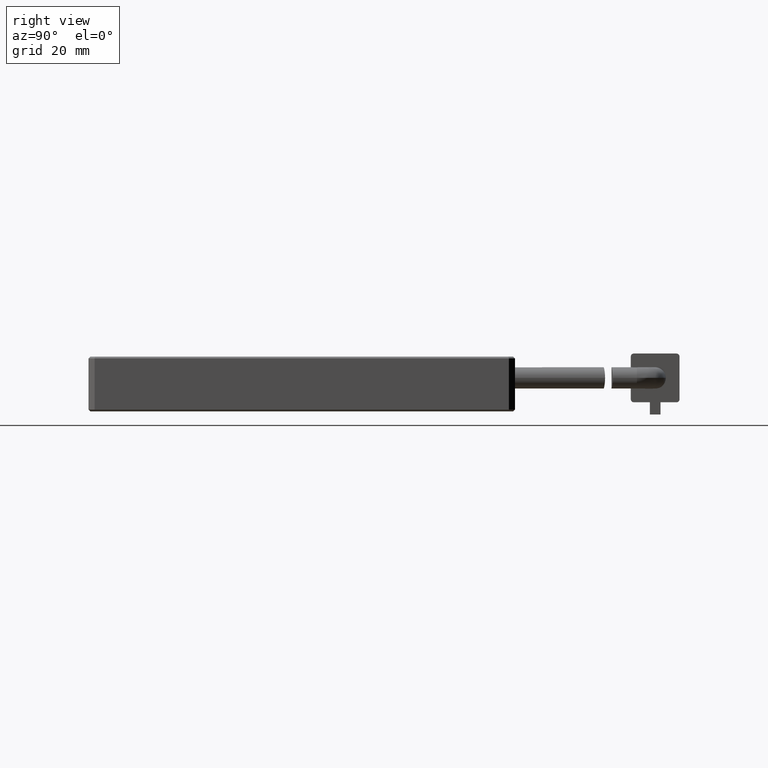
[diagram: clean part render]
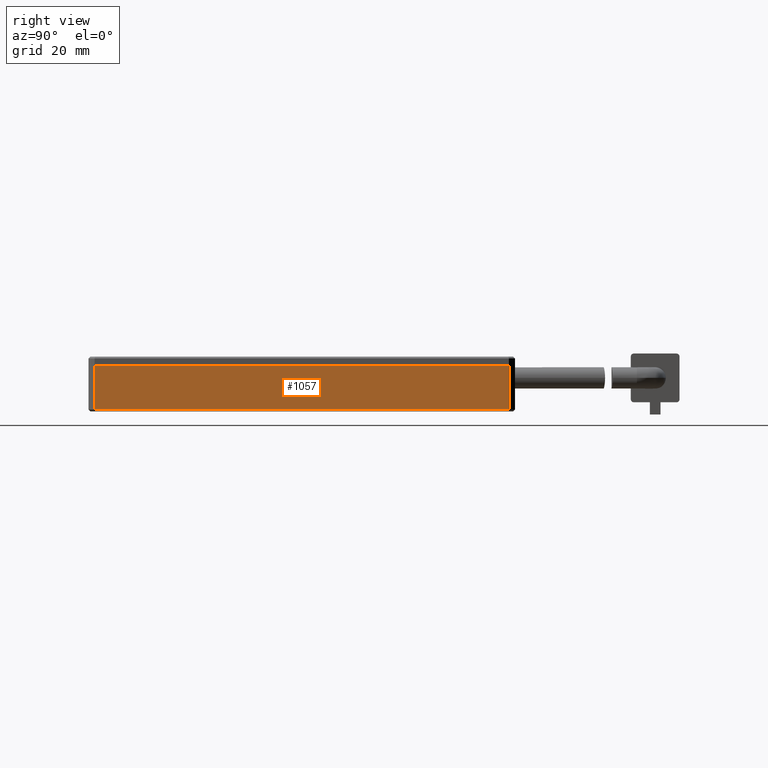
[diagram: same view with one face highlighted and labeled with its STEP entity id]
A machine part, right view. The second image highlights one B-rep face of the part: STEP entity #1057.
In plain terms, the highlighted planar face has unit normal (-1, -0, 0).
Its self-contained STEP definition (entity closure, byte-faithful):
#107 = EDGE_CURVE ( 'NONE', #13022, #18942, #4403, .T. ) ;
#207 = FACE_OUTER_BOUND ( 'NONE', #12343, .T. ) ;
#898 = ORIENTED_EDGE ( 'NONE', *, *, #13666, .F. ) ;
#1057 = ADVANCED_FACE ( 'NONE', ( #207 ), #10906, .F. ) ;
#1582 = DIRECTION ( 'NONE',  ( 0.0000000000000000000, 0.0000000000000000000, 1.000000000000000000 ) ) ;
#2436 = ORIENTED_EDGE ( 'NONE', *, *, #107, .F. ) ;
#4403 = LINE ( 'NONE', #11172, #12617 ) ;
#5317 = ORIENTED_EDGE ( 'NONE', *, *, #10271, .F. ) ;
#5615 = EDGE_CURVE ( 'NONE', #18229, #17674, #13876, .T. ) ;
#6320 = DIRECTION ( 'NONE',  ( 1.982541115401973900E-016, -1.000000000000000000, -1.982541115402065600E-016 ) ) ;
#6777 = VECTOR ( 'NONE', #20469, 1000.000000000000000 ) ;
#7473 = CARTESIAN_POINT ( 'NONE',  ( 22.53369289340102800, 3.535913705583759300, 4.500000000000000000 ) ) ;
#7843 = AXIS2_PLACEMENT_3D ( 'NONE', #12612, #15736, #17384 ) ;
#8544 = CARTESIAN_POINT ( 'NONE',  ( 22.53369289340101400, 72.53591370558376600, 4.500000000000000000 ) ) ;
#8770 = CARTESIAN_POINT ( 'NONE',  ( 22.53369289340100000, 71.53591370558376600, 4.500000000000000000 ) ) ;
#8858 = VECTOR ( 'NONE', #1582, 1000.000000000000000 ) ;
#9361 = LINE ( 'NONE', #20191, #6777 ) ;
#10271 = EDGE_CURVE ( 'NONE', #18942, #17674, #13965, .T. ) ;
#10906 = PLANE ( 'NONE',  #7843 ) ;
#11172 = CARTESIAN_POINT ( 'NONE',  ( 22.53369289340102800, 2.535913705583758800, -2.700000000000036600 ) ) ;
#12343 = EDGE_LOOP ( 'NONE', ( #2436, #898, #19344, #5317 ) ) ;
#12612 = CARTESIAN_POINT ( 'NONE',  ( 22.53369289340102800, 2.535913705583758800, 4.500000000000000000 ) ) ;
#12617 = VECTOR ( 'NONE', #6320, 1000.000000000000000 ) ;
#13022 = VERTEX_POINT ( 'NONE', #19787 ) ;
#13267 = DIRECTION ( 'NONE',  ( -0.0000000000000000000, -1.000000000000000000, -0.0000000000000000000 ) ) ;
#13666 = EDGE_CURVE ( 'NONE', #18229, #13022, #9361, .T. ) ;
#13876 = LINE ( 'NONE', #8544, #18264 ) ;
#13965 = LINE ( 'NONE', #7473, #8858 ) ;
#15382 = CARTESIAN_POINT ( 'NONE',  ( 22.53369289340102800, 3.535913705583746000, 4.500000000000000000 ) ) ;
#15736 = DIRECTION ( 'NONE',  ( -1.000000000000000000, -3.965082230804130700E-016, 0.0000000000000000000 ) ) ;
#17260 = CARTESIAN_POINT ( 'NONE',  ( 22.53369289340102800, 3.535913705583759700, -2.700000000000033500 ) ) ;
#17384 = DIRECTION ( 'NONE',  ( 3.965082230804130700E-016, -1.000000000000000000, 0.0000000000000000000 ) ) ;
#17674 = VERTEX_POINT ( 'NONE', #15382 ) ;
#18229 = VERTEX_POINT ( 'NONE', #8770 ) ;
#18264 = VECTOR ( 'NONE', #13267, 1000.000000000000000 ) ;
#18942 = VERTEX_POINT ( 'NONE', #17260 ) ;
#19344 = ORIENTED_EDGE ( 'NONE', *, *, #5615, .T. ) ;
#19787 = CARTESIAN_POINT ( 'NONE',  ( 22.53369289340100000, 71.53591370558378100, -2.700000000000030800 ) ) ;
#20191 = CARTESIAN_POINT ( 'NONE',  ( 22.53369289340100000, 71.53591370558376600, 4.500000000000000000 ) ) ;
#20469 = DIRECTION ( 'NONE',  ( -0.0000000000000000000, -0.0000000000000000000, -1.000000000000000000 ) ) ;